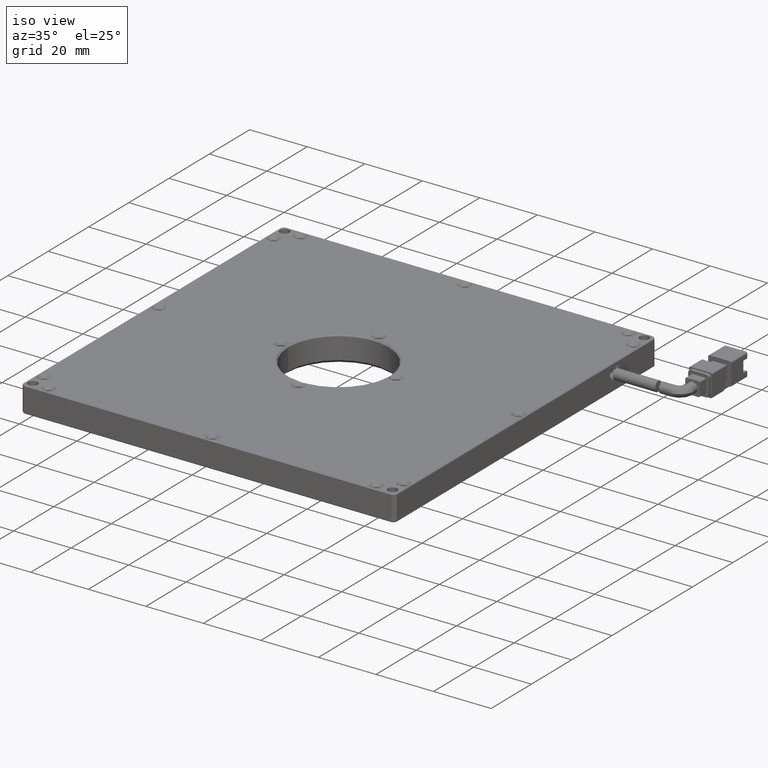
[diagram: clean part render]
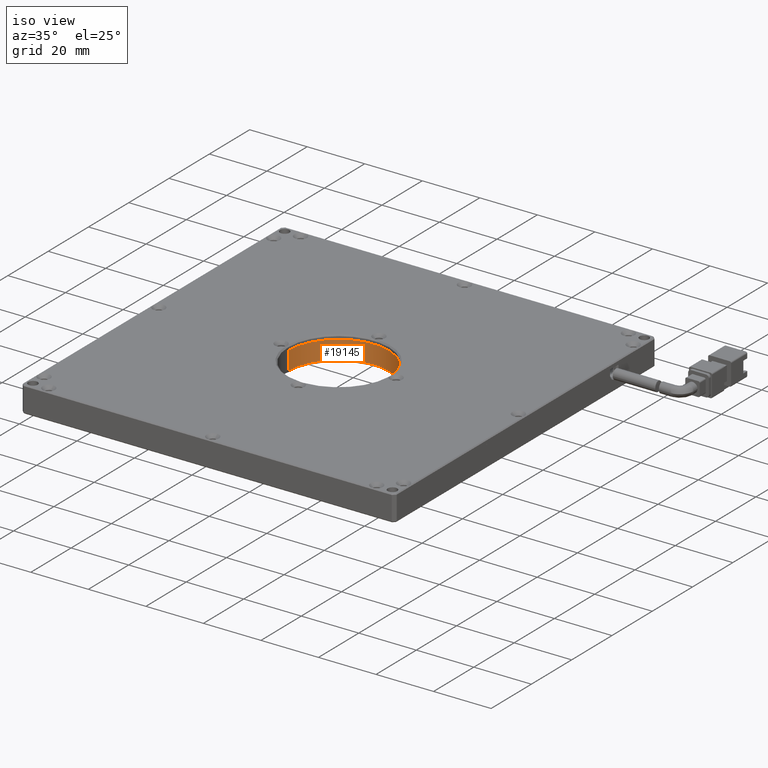
[diagram: same view with one face highlighted and labeled with its STEP entity id]
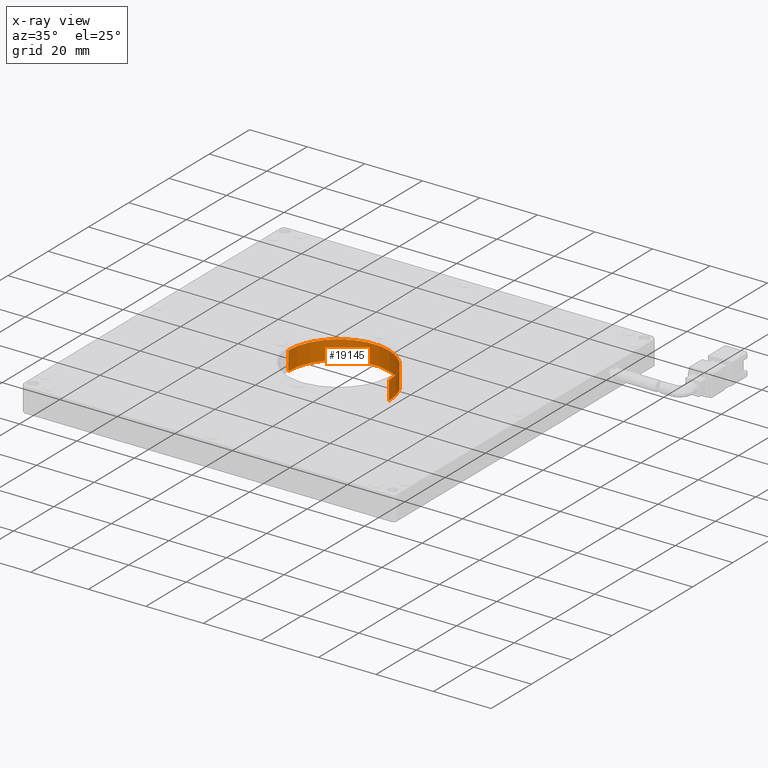
[diagram: x-ray of the same camera — body ghosted, the highlighted face saturated]
A machine part, iso view. The second image highlights one B-rep face of the part: STEP entity #19145.
The next image is the same camera in x-ray: the body ghosted, the highlighted face saturated — about 0% of this face is hidden behind the body in this view.
In plain terms, the highlighted cylindrical surface (partial cylindrical patch) has radius 17.5 mm, axis along (0, 0, -1).
Its self-contained STEP definition (entity closure, byte-faithful):
#536 = CIRCLE ( 'NONE', #17783, 17.50000000000000400 ) ;
#1364 = EDGE_LOOP ( 'NONE', ( #11299, #15578, #20279, #1700 ) ) ;
#1599 = EDGE_CURVE ( 'NONE', #5050, #14434, #4660, .T. ) ;
#1700 = ORIENTED_EDGE ( 'NONE', *, *, #2549, .T. ) ;
#1745 = VECTOR ( 'NONE', #11142, 1000.000000000000000 ) ;
#2549 = EDGE_CURVE ( 'NONE', #14434, #19805, #536, .T. ) ;
#3042 = VECTOR ( 'NONE', #16075, 1000.000000000000000 ) ;
#3262 = CARTESIAN_POINT ( 'NONE',  ( 26.12907407407412200, 24.05944444444444500, 4.499999999999997300 ) ) ;
#4660 = LINE ( 'NONE', #8120, #1745 ) ;
#5050 = VERTEX_POINT ( 'NONE', #9032 ) ;
#5588 = DIRECTION ( 'NONE',  ( -1.000000000000000000, -1.982541115402064900E-016, 0.0000000000000000000 ) ) ;
#5770 = DIRECTION ( 'NONE',  ( -1.000000000000000000, -1.982541115402064900E-016, 0.0000000000000000000 ) ) ;
#7103 = CARTESIAN_POINT ( 'NONE',  ( 8.629074074074115000, 24.05944444444444100, -1.999999999999994900 ) ) ;
#7410 = CYLINDRICAL_SURFACE ( 'NONE', #14148, 17.50000000000000400 ) ;
#7610 = CARTESIAN_POINT ( 'NONE',  ( 43.62907407407412600, 24.05944444444444800, 4.499999999999997300 ) ) ;
#8120 = CARTESIAN_POINT ( 'NONE',  ( 8.629074074074115000, 24.05944444444444100, -61.53117956449462900 ) ) ;
#9032 = CARTESIAN_POINT ( 'NONE',  ( 8.629074074074115000, 24.05944444444444100, 4.499999999999997300 ) ) ;
#9696 = AXIS2_PLACEMENT_3D ( 'NONE', #3262, #12596, #12731 ) ;
#11142 = DIRECTION ( 'NONE',  ( 0.0000000000000000000, 0.0000000000000000000, -1.000000000000000000 ) ) ;
#11299 = ORIENTED_EDGE ( 'NONE', *, *, #20248, .F. ) ;
#11863 = FACE_OUTER_BOUND ( 'NONE', #1364, .T. ) ;
#12123 = VERTEX_POINT ( 'NONE', #7610 ) ;
#12596 = DIRECTION ( 'NONE',  ( 0.0000000000000000000, 0.0000000000000000000, -1.000000000000000000 ) ) ;
#12731 = DIRECTION ( 'NONE',  ( -1.000000000000000000, -1.982541115402064900E-016, 0.0000000000000000000 ) ) ;
#13160 = CARTESIAN_POINT ( 'NONE',  ( 43.62907407407412600, 24.05944444444444800, -1.999999999999994900 ) ) ;
#13426 = DIRECTION ( 'NONE',  ( 0.0000000000000000000, 0.0000000000000000000, -1.000000000000000000 ) ) ;
#14148 = AXIS2_PLACEMENT_3D ( 'NONE', #15151, #14953, #5770 ) ;
#14434 = VERTEX_POINT ( 'NONE', #7103 ) ;
#14953 = DIRECTION ( 'NONE',  ( 0.0000000000000000000, 0.0000000000000000000, -1.000000000000000000 ) ) ;
#15151 = CARTESIAN_POINT ( 'NONE',  ( 26.12907407407412200, 24.05944444444444500, -61.53117956449462900 ) ) ;
#15578 = ORIENTED_EDGE ( 'NONE', *, *, #15877, .F. ) ;
#15877 = EDGE_CURVE ( 'NONE', #5050, #12123, #17099, .T. ) ;
#16075 = DIRECTION ( 'NONE',  ( 0.0000000000000000000, 0.0000000000000000000, -1.000000000000000000 ) ) ;
#16288 = LINE ( 'NONE', #19174, #3042 ) ;
#17099 = CIRCLE ( 'NONE', #9696, 17.50000000000000400 ) ;
#17783 = AXIS2_PLACEMENT_3D ( 'NONE', #19879, #13426, #5588 ) ;
#19145 = ADVANCED_FACE ( 'NONE', ( #11863 ), #7410, .F. ) ;
#19174 = CARTESIAN_POINT ( 'NONE',  ( 43.62907407407412600, 24.05944444444444800, -61.53117956449462900 ) ) ;
#19805 = VERTEX_POINT ( 'NONE', #13160 ) ;
#19879 = CARTESIAN_POINT ( 'NONE',  ( 26.12907407407412200, 24.05944444444444500, -1.999999999999994900 ) ) ;
#20248 = EDGE_CURVE ( 'NONE', #12123, #19805, #16288, .T. ) ;
#20279 = ORIENTED_EDGE ( 'NONE', *, *, #1599, .T. ) ;